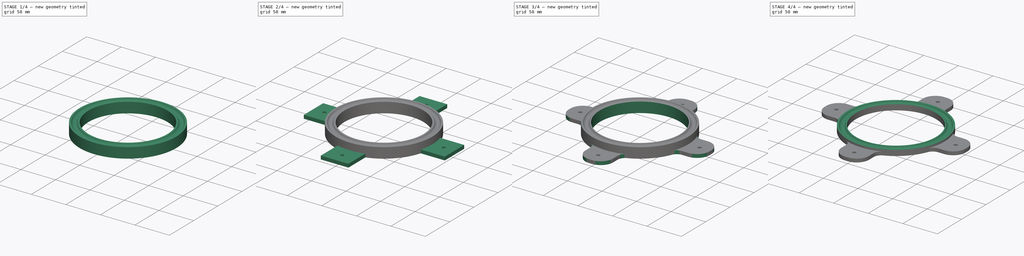
[diagram: build sequence overview — one tinted view per stage of 4, left to right]
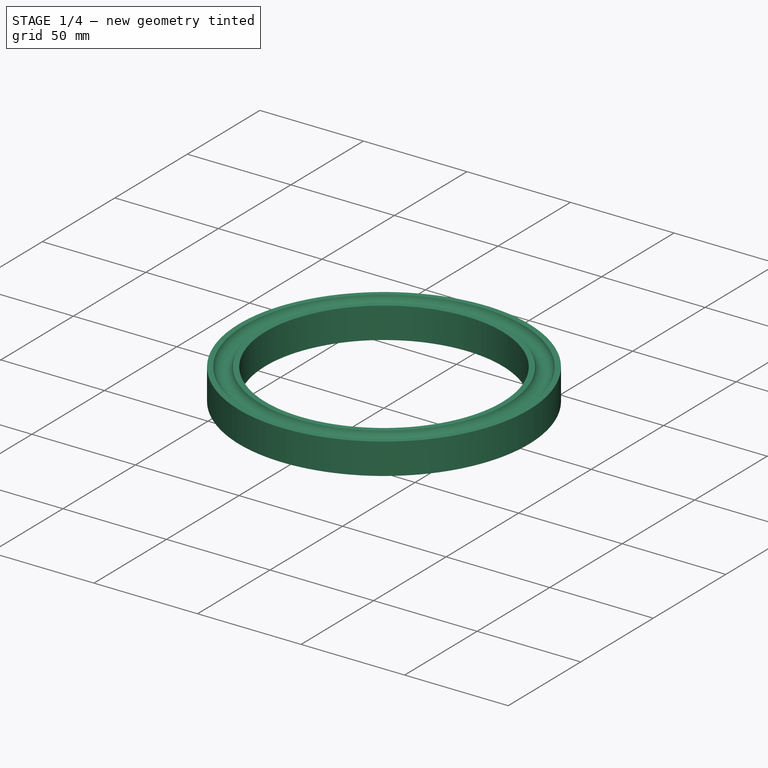
[diagram: stage 1 of 4 — iso view after this stage's code; geometry added in this stage tinted green]
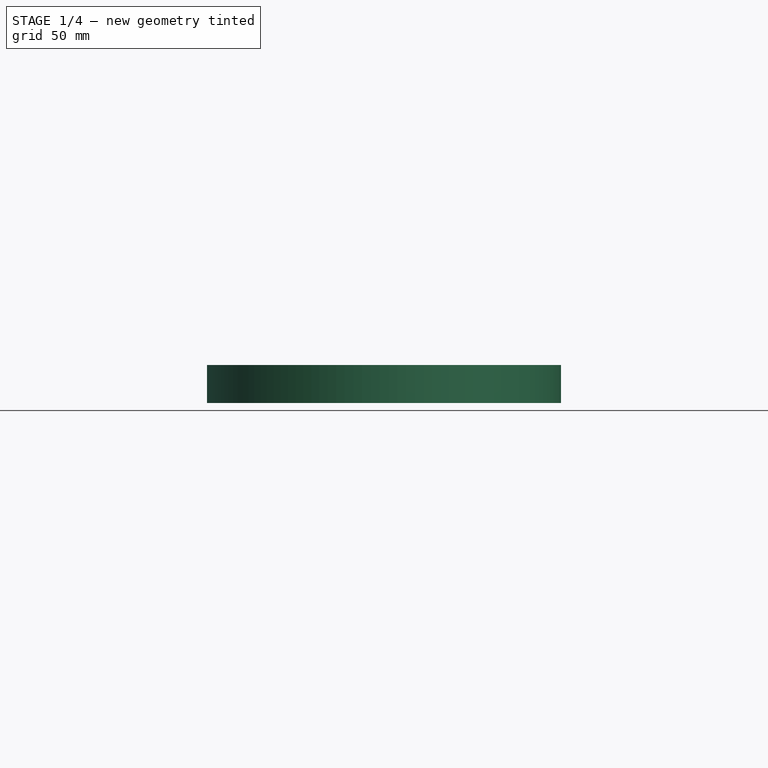
[diagram: stage 1 of 4 — front view after this stage's code; geometry added in this stage tinted green]
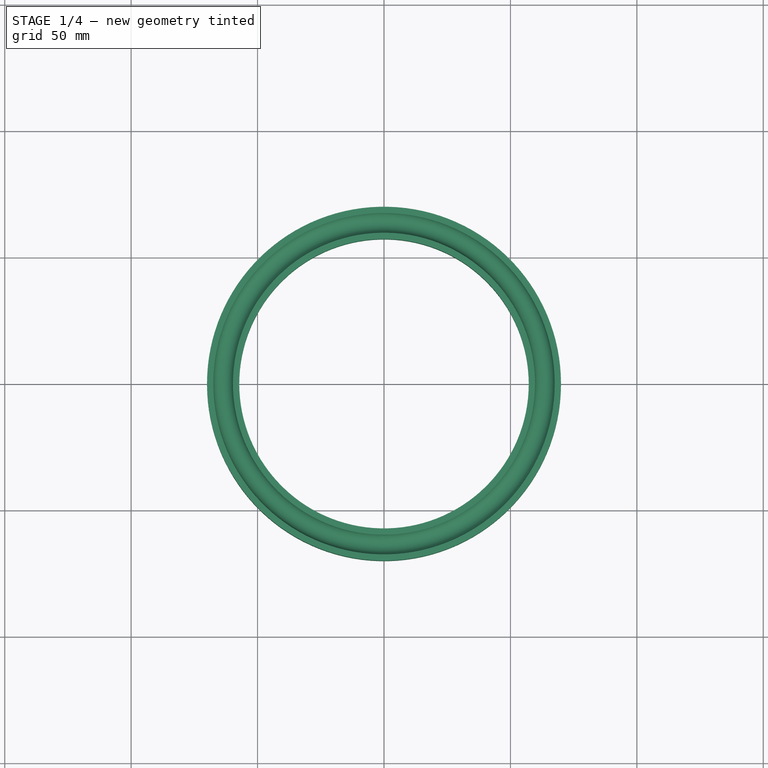
[diagram: stage 1 of 4 — top view after this stage's code; geometry added in this stage tinted green]
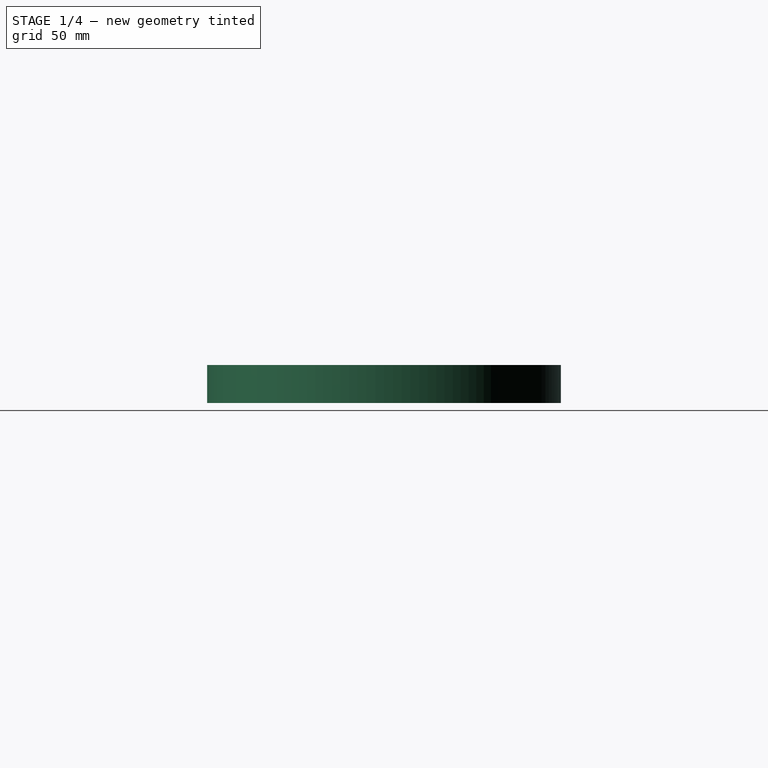
[diagram: stage 1 of 4 — right view after this stage's code; geometry added in this stage tinted green]
FCSTD DOCUMENT  (FreeCAD 1.0R39109 (Git))
Label: brearing_110mm_V_EDITE
License: All rights reserved
LicenseURL: https://en.wikipedia.org/wiki/All_rights_reserved
objects: Sketcher::SketchObject×7, PartDesign::Pocket×3, PartDesign::Pad×2, PartDesign::Groove×2, PartDesign::Fillet×2, PartDesign::Body×1
note: 42 computed .brp shape members not serialized (recipe doc carries the construction recipe); baked Part::Feature solids carry a one-line shape summary decoded from their .brp

FEATURE [Sketcher::SketchObject] Sketch
  ArcFitTolerance = 1e-06
  AttachmentSupport = -> [XY_Plane]
  FullyConstrained = true
  MakeInternals = false
  MapMode = 5
  sketch-geometry (2):
    g0: Circle CenterX=0 CenterY=0 CenterZ=0 NormalX=0 NormalY=0 NormalZ=1 AngleXU=0 Radius=57.25
    g1: Circle CenterX=0 CenterY=0 CenterZ=0 NormalX=0 NormalY=0 NormalZ=1 AngleXU=0 Radius=70
  constraints (4):
    c: Diameter(g0) = 114.5
    c: Coincident(g0,g-1)
    c: Diameter(g1) = 140
    c: Coincident(g1,g0)
FEATURE [PartDesign::Pad] Pad
  Direction = (0,0,1)
  Length = 15
  Length2 = 10
  Profile = -> Sketch
  ReferenceAxis = -> Sketch [N_Axis]
  Refine = true
  Suppressed = false
  Type = 0
FEATURE [Sketcher::SketchObject] Sketch001
  ArcFitTolerance = 1e-06
  AttachmentSupport = -> [XZ_Plane]
  FullyConstrained = true
  MakeInternals = false
  MapMode = 5
  Placement = pos=(0,0,0) rot=(1,0,0;1.5708rad)
  sketch-geometry (3):
    g0: Circle CenterX=63.625 CenterY=16 CenterZ=0 NormalX=0 NormalY=0 NormalZ=1 AngleXU=0 Radius=4
    g1: LineSegment [constr] StartX=0 StartY=5 StartZ=0 EndX=57.25 EndY=5 EndZ=0
    g2: LineSegment [constr] StartX=57.25 StartY=5 StartZ=0 EndX=70 EndY=5 EndZ=0
  constraints (10):
    c: Diameter(g0) = 8
    c: DistanceY(g-1,g0) = 16
    c: PointOnObject(g1,g-2)
    c: Horizontal(g1)
    c: Coincident(g2,g1)
    c: Horizontal(g2)
    c: DistanceX(g1,g1) = 57.25
    c: DistanceX(g1,g2) = 12.75
    c: DistanceX(g0,g2) = 6.375
    c: DistanceY(g-1,g2) = 5
FEATURE [PartDesign::Groove] Groove
  Angle = 360
  Angle2 = 60
  Axis = (0,2e-16,1)
  Base = (0,0,0)
  BaseFeature = -> Pad
  Profile = -> Sketch001
  ReferenceAxis = -> Sketch001 [V_Axis]
  Refine = true
  Suppressed = false
  Type = 0
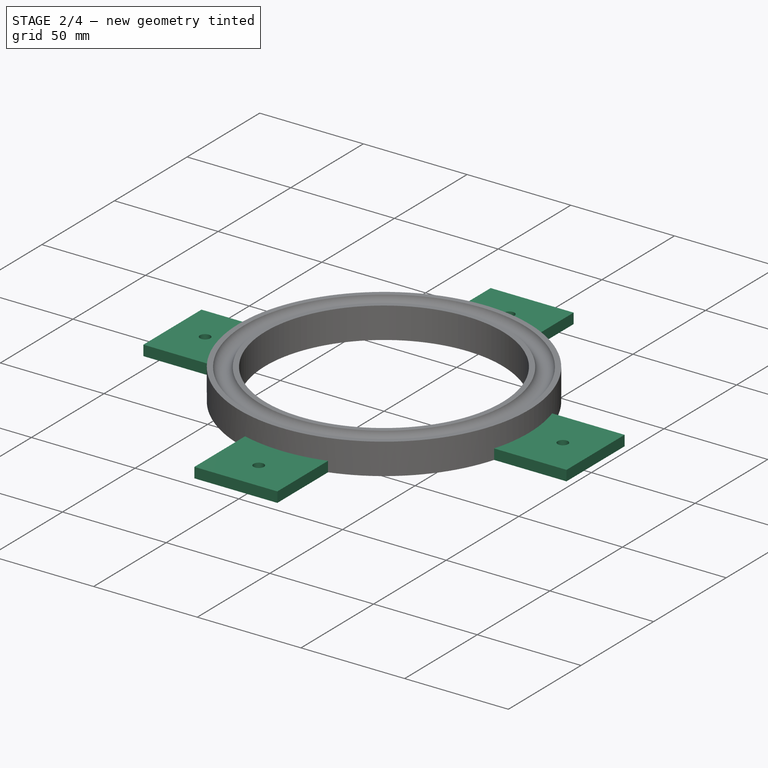
[diagram: stage 2 of 4 — iso view after this stage's code; geometry added in this stage tinted green]
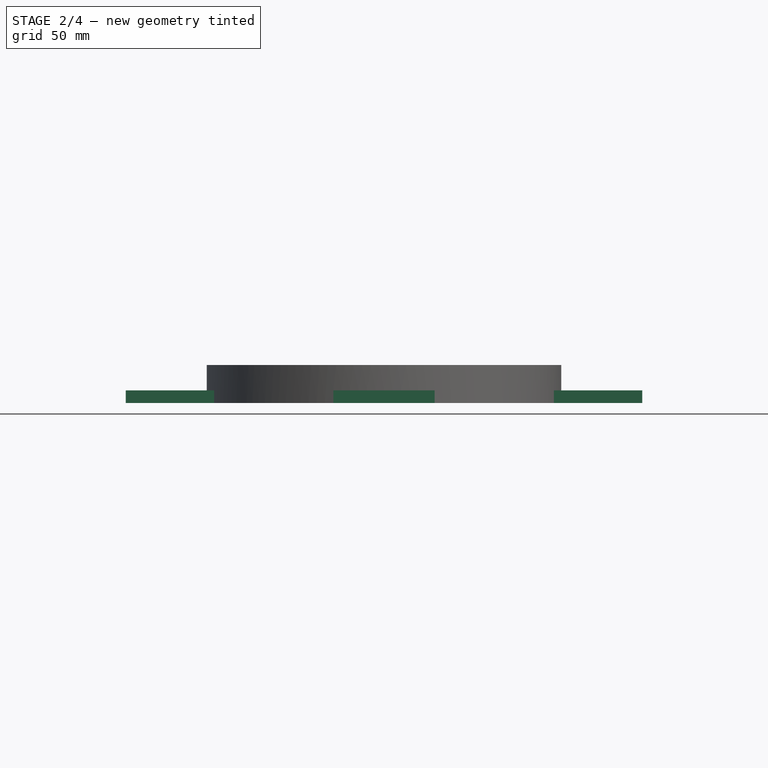
[diagram: stage 2 of 4 — front view after this stage's code; geometry added in this stage tinted green]
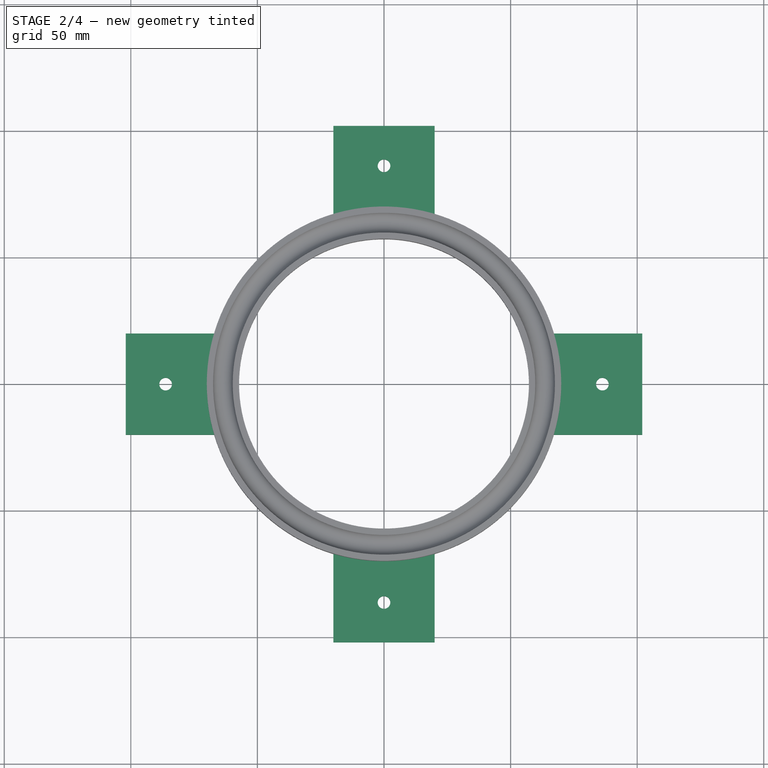
[diagram: stage 2 of 4 — top view after this stage's code; geometry added in this stage tinted green]
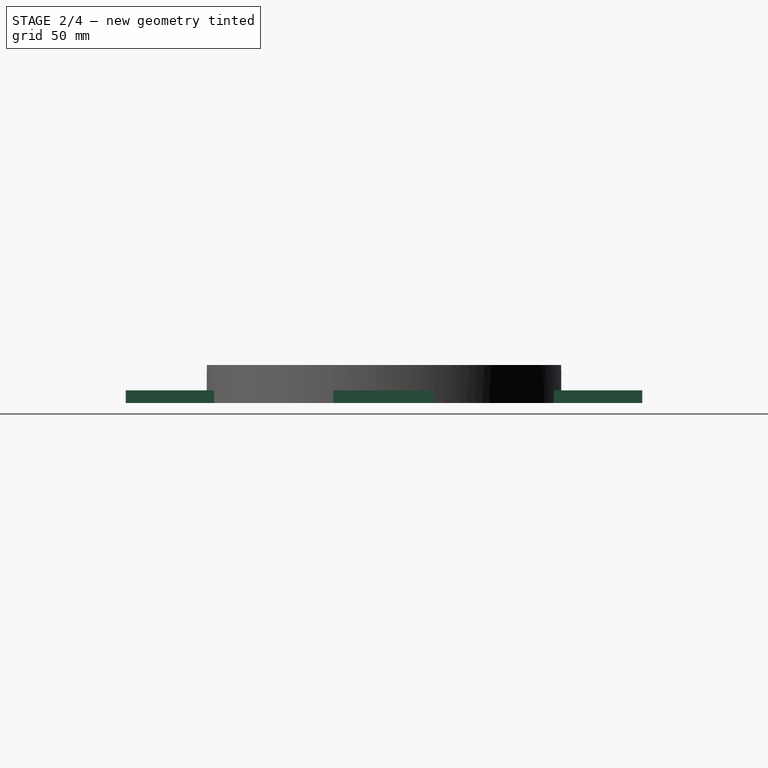
[diagram: stage 2 of 4 — right view after this stage's code; geometry added in this stage tinted green]
FEATURE [Sketcher::SketchObject] Sketch002
  ArcFitTolerance = 1e-06
  AttachmentSupport = -> [Groove]
  FullyConstrained = true
  MakeInternals = false
  MapMode = 5
  Placement = pos=(0,0,0) rot=(1,0,0;3.14159rad)
  sketch-geometry (16):
    g0: LineSegment StartX=62 StartY=20 StartZ=0 EndX=62 EndY=-20 EndZ=0
    g1: LineSegment StartX=62 StartY=-20 StartZ=0 EndX=102 EndY=-20 EndZ=0
    g2: LineSegment StartX=102 StartY=-20 StartZ=0 EndX=102 EndY=20 EndZ=0
    g3: LineSegment StartX=102 StartY=20 StartZ=0 EndX=62 EndY=20 EndZ=0
    g4: LineSegment StartX=-62 StartY=20 StartZ=0 EndX=-102 EndY=20 EndZ=0
    g5: LineSegment StartX=-102 StartY=20 StartZ=0 EndX=-102 EndY=-20 EndZ=0
    g6: LineSegment StartX=-102 StartY=-20 StartZ=0 EndX=-62 EndY=-20 EndZ=0
    g7: LineSegment StartX=-62 StartY=-20 StartZ=0 EndX=-62 EndY=20 EndZ=0
    g8: LineSegment StartX=-20 StartY=102 StartZ=0 EndX=-20 EndY=62 EndZ=0
    g9: LineSegment StartX=-20 StartY=62 StartZ=0 EndX=20 EndY=62 EndZ=0
    g10: LineSegment StartX=20 StartY=62 StartZ=0 EndX=20 EndY=102 EndZ=0
    g11: LineSegment StartX=20 StartY=102 StartZ=0 EndX=-20 EndY=102 EndZ=0
    g12: LineSegment StartX=-20 StartY=-62 StartZ=0 EndX=-20 EndY=-102 EndZ=0
    g13: LineSegment StartX=-20 StartY=-102 StartZ=0 EndX=20 EndY=-102 EndZ=0
    g14: LineSegment StartX=20 StartY=-102 StartZ=0 EndX=20 EndY=-62 EndZ=0
    g15: LineSegment StartX=20 StartY=-62 StartZ=0 EndX=-20 EndY=-62 EndZ=0
  constraints (48):
    c: Coincident(g0,g1)
    c: Coincident(g1,g2)
    c: Coincident(g2,g3)
    c: Coincident(g3,g0)
    c: Vertical(g0)
    c: Vertical(g2)
    c: Horizontal(g1)
    c: Horizontal(g3)
    c: Coincident(g4,g5)
    c: Coincident(g5,g6)
    c: Coincident(g6,g7)
    c: Coincident(g7,g4)
    c: Horizontal(g4)
    c: Horizontal(g6)
    c: Vertical(g5)
    c: Vertical(g7)
    c: Equal(g4,g3)
    c: Equal(g0,g7)
    c: DistanceY(g7,g7) = 40
    c: Horizontal(g6,g0)
    c: DistanceX(g-1,g0) = 62
    c: DistanceX(g6,g-1) = 62
    c: DistanceY(g6,g-1) = 20
    c: DistanceX(g4,g4) = 40
    c: Coincident(g8,g9)
    c: Coincident(g9,g10)
    c: Coincident(g10,g11)
    c: Coincident(g11,g8)
    c: Vertical(g8)
    c: Vertical(g10)
    c: Horizontal(g9)
    c: Horizontal(g11)
    c: Coincident(g12,g13)
    c: Coincident(g13,g14)
    c: Coincident(g14,g15)
    c: Coincident(g15,g12)
    c: Vertical(g12)
    c: Vertical(g14)
    c: Horizontal(g13)
    c: Horizontal(g15)
    c: Equal(g15,g9)
    c: Equal(g10,g14)
    c: Equal(g14,g1)
    c: Equal(g15,g0)
    c: DistanceX(g-1,g14) = 20
    c: DistanceY(g14,g-1) = 62
    c: DistanceY(g-1,g9) = 62
    c: Vertical(g14,g9)
FEATURE [PartDesign::Pad] Pad001
  BaseFeature = -> Groove
  Direction = (0,0,-1)
  Length = 5
  Length2 = 10
  Profile = -> Sketch002
  ReferenceAxis = -> Sketch002 [N_Axis]
  Refine = true
  Reversed = true
  Suppressed = false
  Type = 0
FEATURE [Sketcher::SketchObject] Sketch003
  ArcFitTolerance = 1e-06
  AttachmentSupport = -> [Pad001]
  FullyConstrained = true
  MakeInternals = false
  MapMode = 5
  Placement = pos=(0,0,5) rot=(0,0,1;0rad)
  sketch-geometry (5):
    g0: Circle CenterX=-86.25 CenterY=0 CenterZ=0 NormalX=0 NormalY=0 NormalZ=1 AngleXU=0 Radius=2.5
    g1: Circle CenterX=0 CenterY=-86.25 CenterZ=0 NormalX=0 NormalY=0 NormalZ=1 AngleXU=0 Radius=2.5
    g2: Circle CenterX=86.25 CenterY=0 CenterZ=0 NormalX=0 NormalY=0 NormalZ=1 AngleXU=0 Radius=2.5
    g3: Circle CenterX=0 CenterY=86.25 CenterZ=0 NormalX=0 NormalY=0 NormalZ=1 AngleXU=0 Radius=2.5
    g4: Circle [constr] CenterX=0 CenterY=0 CenterZ=0 NormalX=0 NormalY=0 NormalZ=1 AngleXU=0 Radius=86.25
  constraints (14):
    c: PointOnObject(g0,g-1)
    c: PointOnObject(g1,g-2)
    c: PointOnObject(g2,g-1)
    c: PointOnObject(g3,g-2)
    c: Equal(g0,g1)
    c: Equal(g1,g2)
    c: Equal(g2,g3)
    c: Diameter(g4) = 172.5
    c: Coincident(g4,g-1)
    c: PointOnObject(g1,g4)
    c: PointOnObject(g2,g4)
    c: PointOnObject(g3,g4)
    c: PointOnObject(g0,g4)
    c: Diameter(g3) = 5
FEATURE [PartDesign::Pocket] Pocket
  BaseFeature = -> Pad001
  Direction = (0,0,-1)
  Length = 5
  Length2 = 5
  Profile = -> Sketch003
  ReferenceAxis = -> Sketch003 [N_Axis]
  Refine = true
  Suppressed = false
  Type = 0
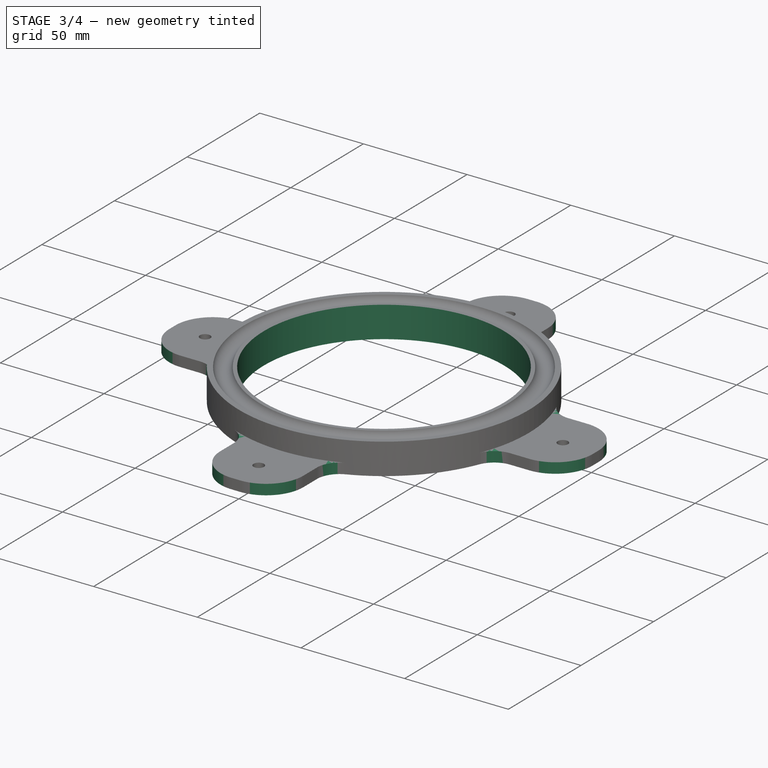
[diagram: stage 3 of 4 — iso view after this stage's code; geometry added in this stage tinted green]
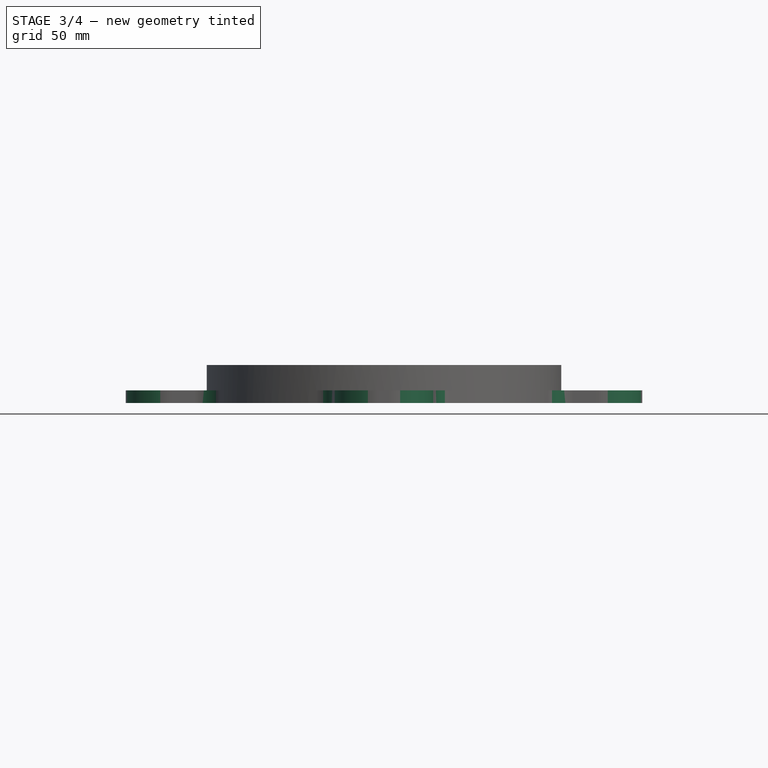
[diagram: stage 3 of 4 — front view after this stage's code; geometry added in this stage tinted green]
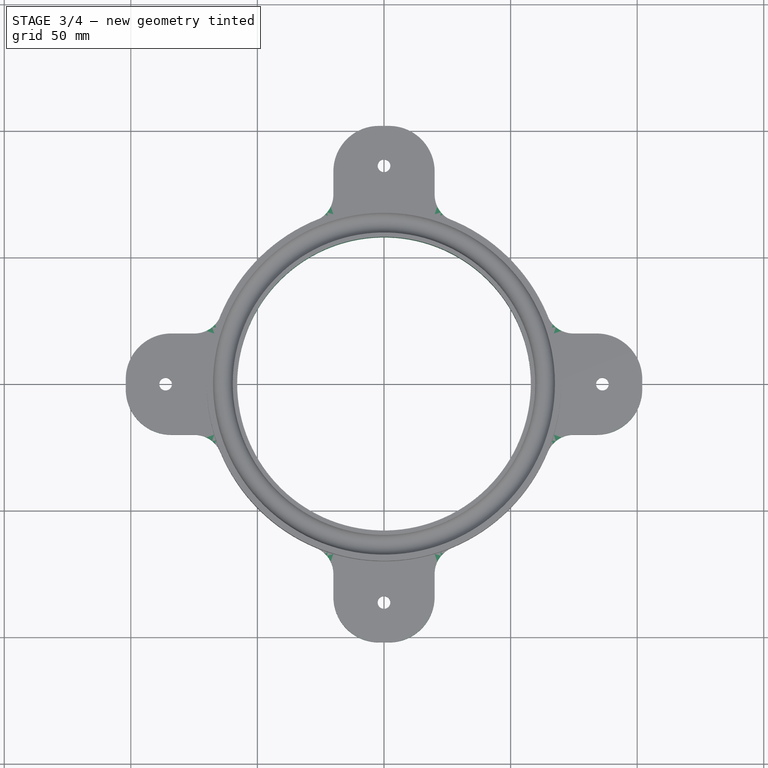
[diagram: stage 3 of 4 — top view after this stage's code; geometry added in this stage tinted green]
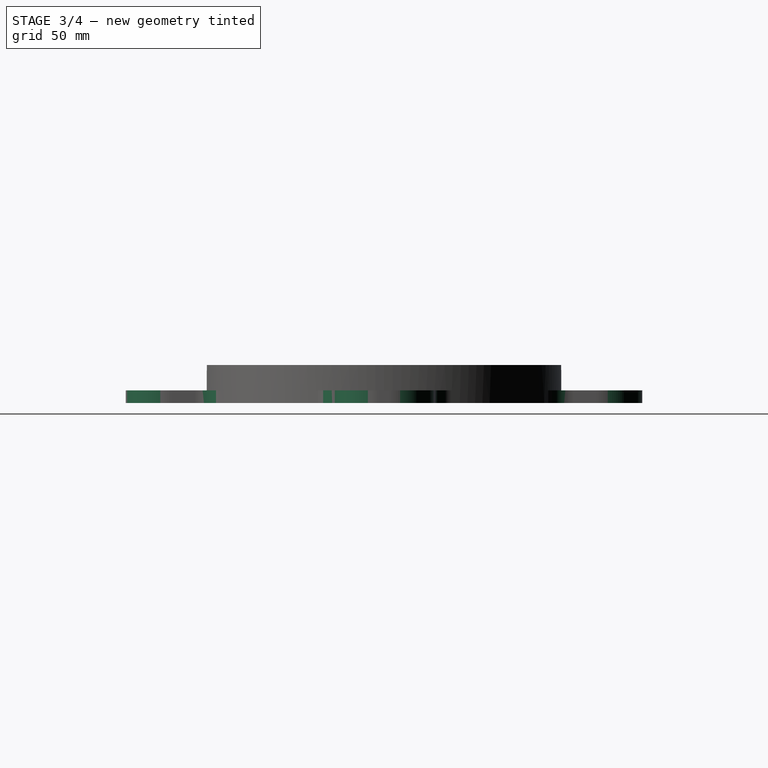
[diagram: stage 3 of 4 — right view after this stage's code; geometry added in this stage tinted green]
FEATURE [PartDesign::Fillet] Fillet
  Base = -> Pocket [Edge47,Edge45,Edge25,Edge42,Edge50,Edge52,Edge57,Edge55]
  BaseFeature = -> Pocket
  Radius = 18
  Refine = true
  SupportTransform = false
  Suppressed = false
  UseAllEdges = false
FEATURE [PartDesign::Fillet] Fillet001
  Base = -> Fillet [Edge31,Edge36,Edge38,Edge39,Edge41,Edge42,Edge44,Edge45]
  BaseFeature = -> Fillet
  Radius = 11
  Refine = true
  SupportTransform = false
  Suppressed = false
  UseAllEdges = false
FEATURE [Sketcher::SketchObject] Sketch004
  ArcFitTolerance = 1e-06
  AttachmentSupport = -> [Fillet001]
  FullyConstrained = true
  MakeInternals = false
  MapMode = 5
  Placement = pos=(0,0,15) rot=(0,0,1;0rad)
  sketch-geometry (1):
    g0: Circle CenterX=0 CenterY=0 CenterZ=0 NormalX=0 NormalY=0 NormalZ=1 AngleXU=0 Radius=58
  constraints (2):
    c: Coincident(g0,g-1)
    c: Diameter(g0) = 116
FEATURE [PartDesign::Pocket] Pocket001
  BaseFeature = -> Fillet001
  Direction = (0,0,-1)
  Length = 14
  Length2 = 5
  Profile = -> Sketch004
  ReferenceAxis = -> Sketch004 [N_Axis]
  Refine = true
  Suppressed = false
  Type = 1
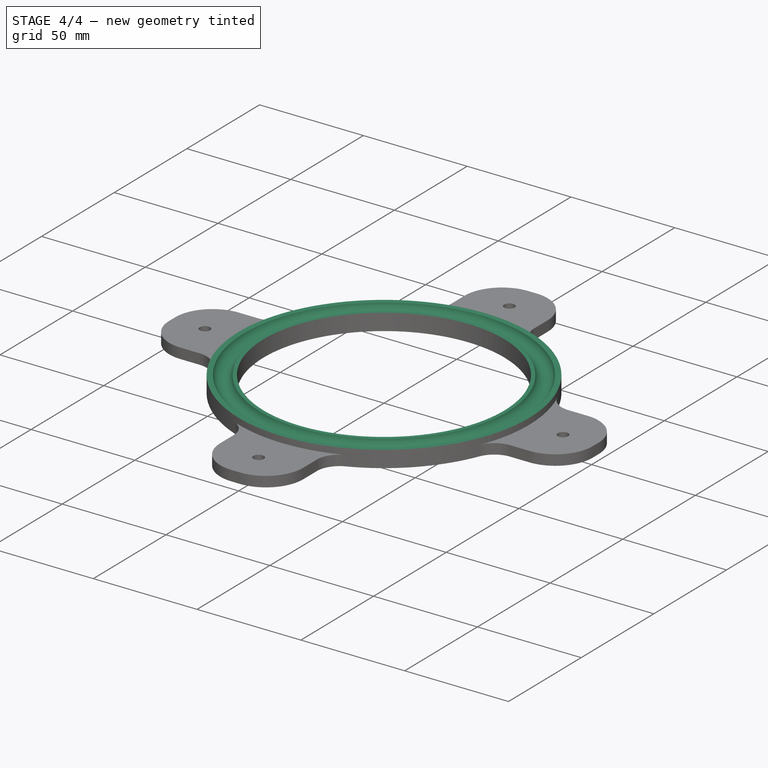
[diagram: stage 4 of 4 — iso view after this stage's code; geometry added in this stage tinted green]
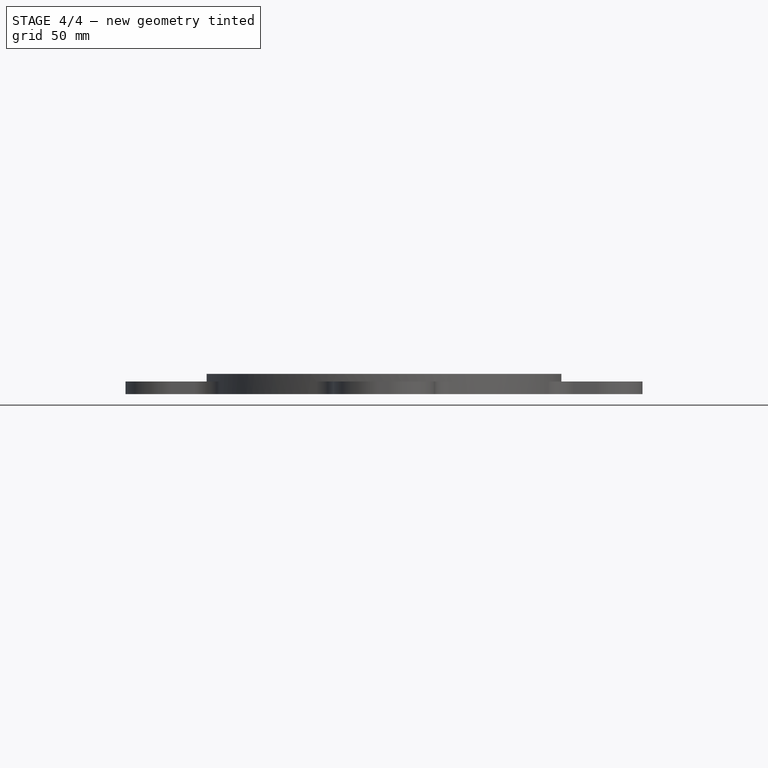
[diagram: stage 4 of 4 — front view after this stage's code; geometry added in this stage tinted green]
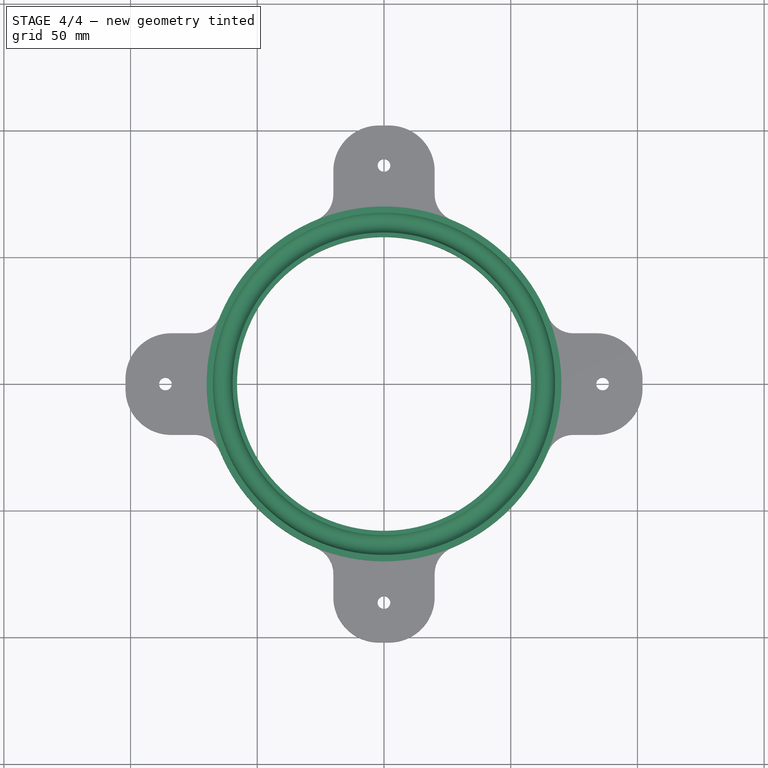
[diagram: stage 4 of 4 — top view after this stage's code; geometry added in this stage tinted green]
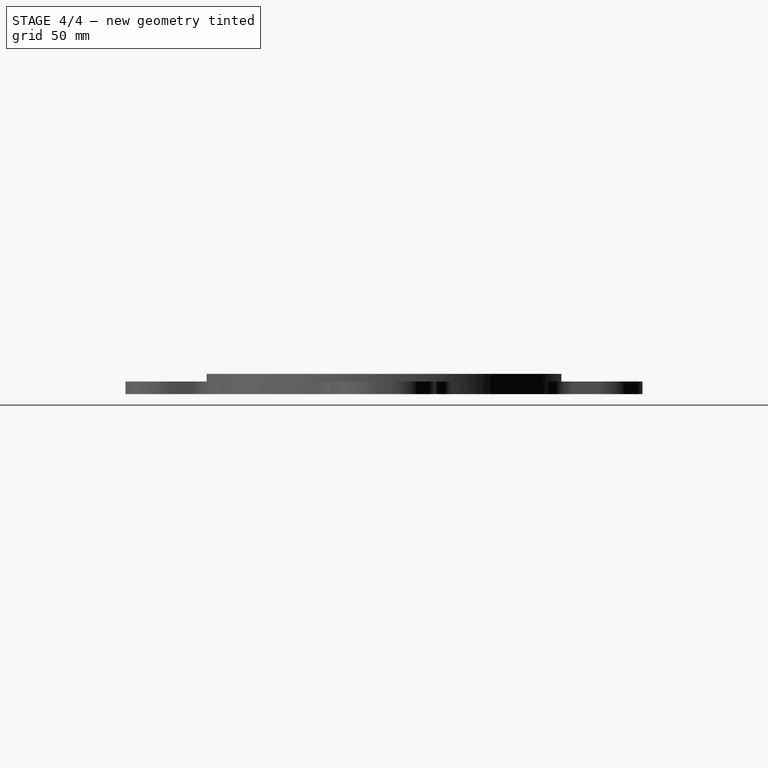
[diagram: stage 4 of 4 — right view after this stage's code; geometry added in this stage tinted green]
FEATURE [Sketcher::SketchObject] Sketch005
  ArcFitTolerance = 1e-06
  AttachmentSupport = -> [Pocket001]
  FullyConstrained = true
  MakeInternals = false
  MapMode = 5
  Placement = pos=(0,0,15) rot=(0,0,1;0rad)
  sketch-geometry (1):
    g0: Circle CenterX=0 CenterY=0 CenterZ=0 NormalX=0 NormalY=0 NormalZ=1 AngleXU=0 Radius=71
  constraints (2):
    c: Diameter(g0) = 142
    c: Coincident(g0,g-1)
FEATURE [PartDesign::Pocket] Pocket002
  BaseFeature = -> Pocket001
  Direction = (0,0,-1)
  Length = 7
  Length2 = 5
  Profile = -> Sketch005
  ReferenceAxis = -> Sketch005 [N_Axis]
  Refine = true
  Suppressed = false
  Type = 0
FEATURE [Sketcher::SketchObject] Sketch006
  ArcFitTolerance = 1e-06
  AttachmentSupport = -> [XZ_Plane]
  FullyConstrained = true
  MakeInternals = false
  MapMode = 5
  Placement = pos=(0,0,0) rot=(1,0,0;1.5708rad)
  sketch-geometry (3):
    g0: Circle CenterX=63.625 CenterY=9 CenterZ=0 NormalX=0 NormalY=0 NormalZ=1 AngleXU=0 Radius=4
    g1: LineSegment [constr] StartX=0 StartY=4 StartZ=0 EndX=57.25 EndY=4 EndZ=0
    g2: LineSegment [constr] StartX=57.25 StartY=4 StartZ=0 EndX=70 EndY=4 EndZ=0
  constraints (10):
    c: Diameter(g0) = 8
    c: Distance(g1) = 57.25
    c: PointOnObject(g1,g-2)
    c: Horizontal(g1)
    c: Distance(g2) = 12.75
    c: Coincident(g2,g1)
    c: Horizontal(g2)
    c: DistanceX(g0,g2) = 6.375
    c: DistanceY(g-1,g0) = 9
    c: DistanceY(g-1,g2) = 4
FEATURE [PartDesign::Groove] Groove001
  Angle = 360
  Angle2 = 60
  Axis = (0,2e-16,1)
  Base = (0,0,0)
  BaseFeature = -> Pocket002
  Profile = -> Sketch006
  ReferenceAxis = -> Sketch006 [V_Axis]
  Refine = true
  Suppressed = false
  Type = 0
FEATURE [PartDesign::Body] Body
  AllowCompound = false
  Group = -> [Sketch,Pad,Sketch001,Groove,Sketch002,Pad001,Sketch003,Pocket,Fillet,Fillet001,Sketch004,Pocket001,Sketch005,Pocket002,Sketch006,Groove001]
  Origin = -> Origin
  Tip = -> Groove001
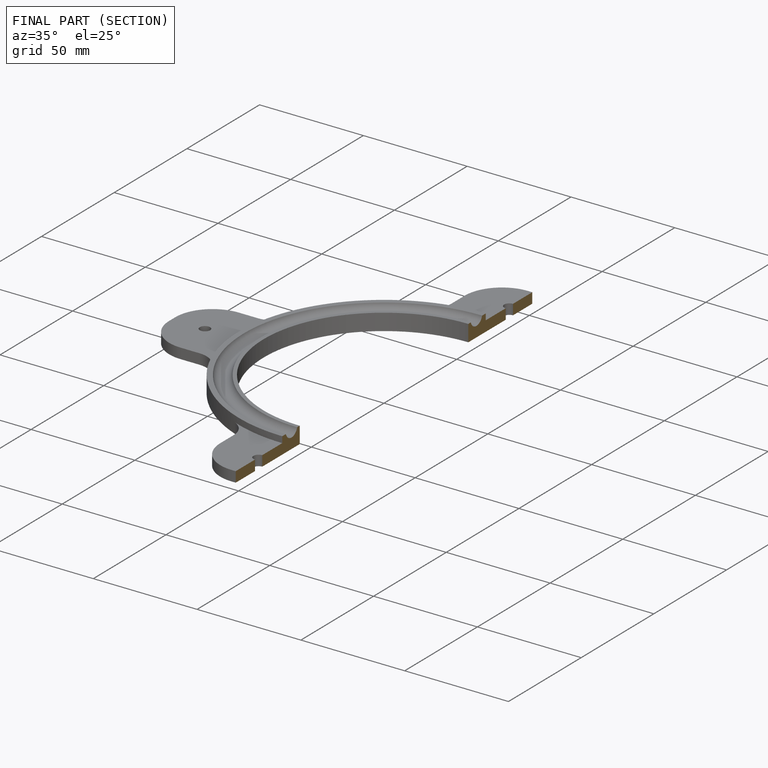
[diagram: finished part — half-section view (interior)]
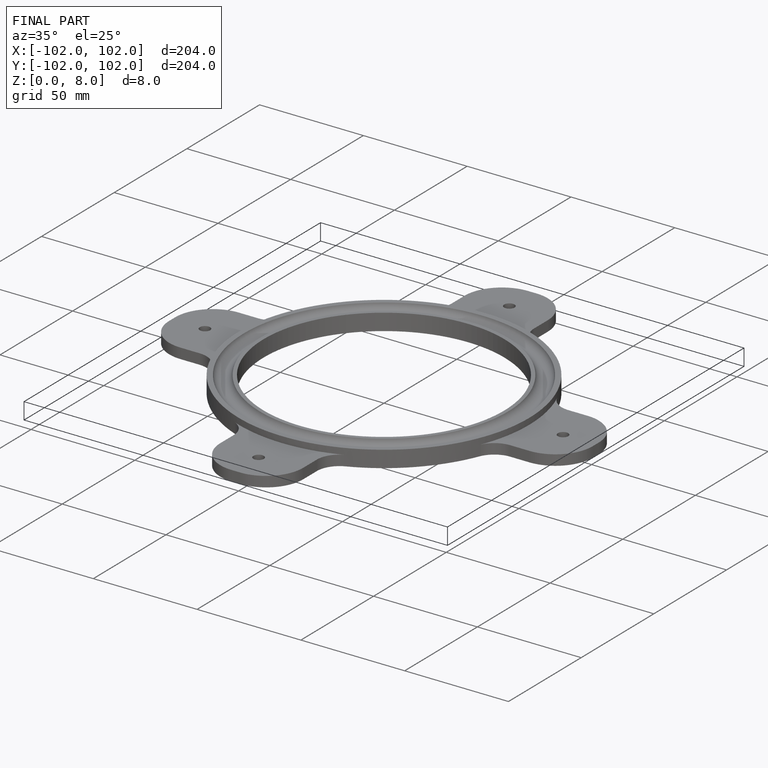
[diagram: finished part — iso view with bounding-box wireframe]
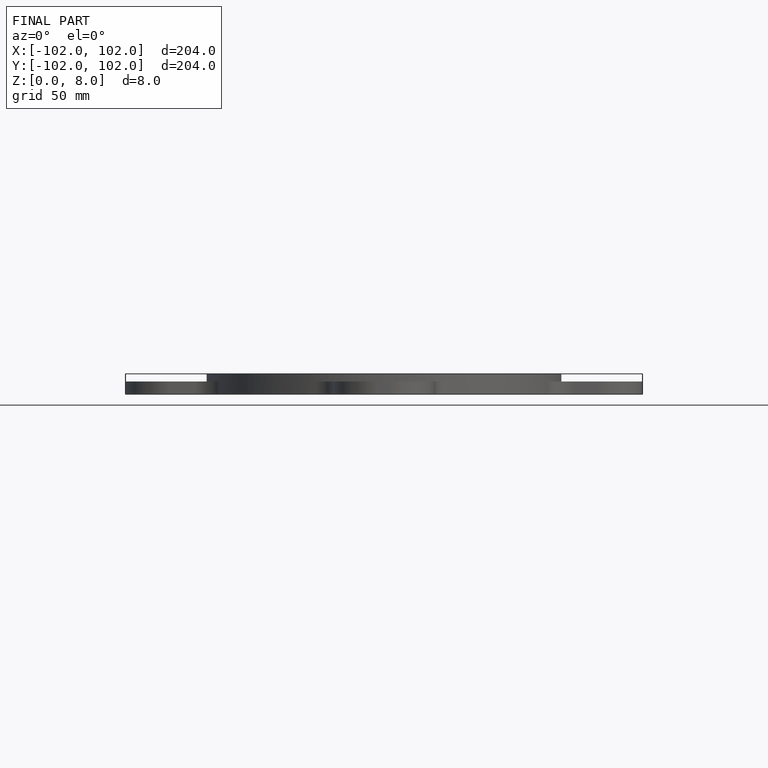
[diagram: finished part — front view with bounding-box wireframe]
